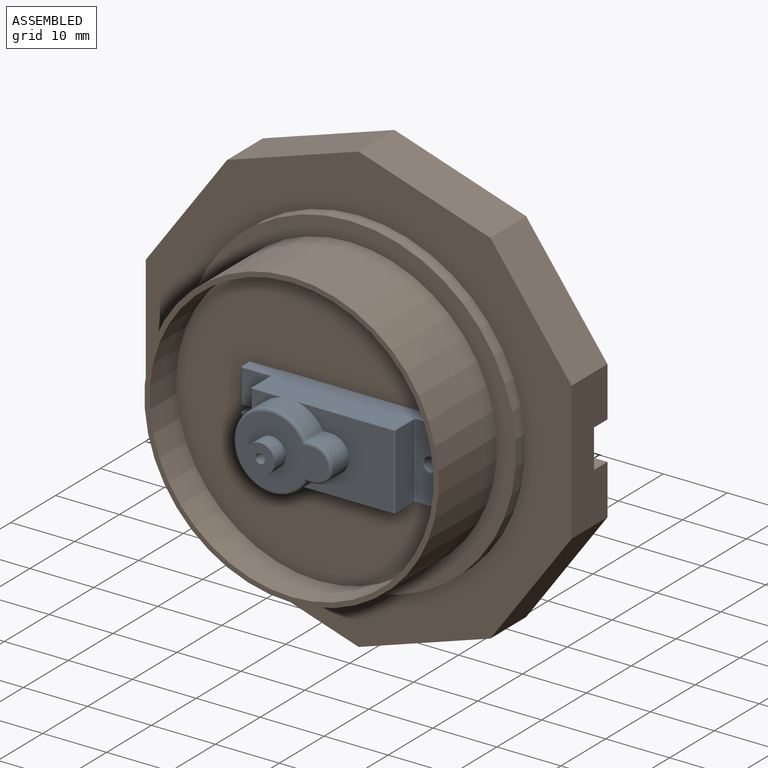
[diagram: assembled view]
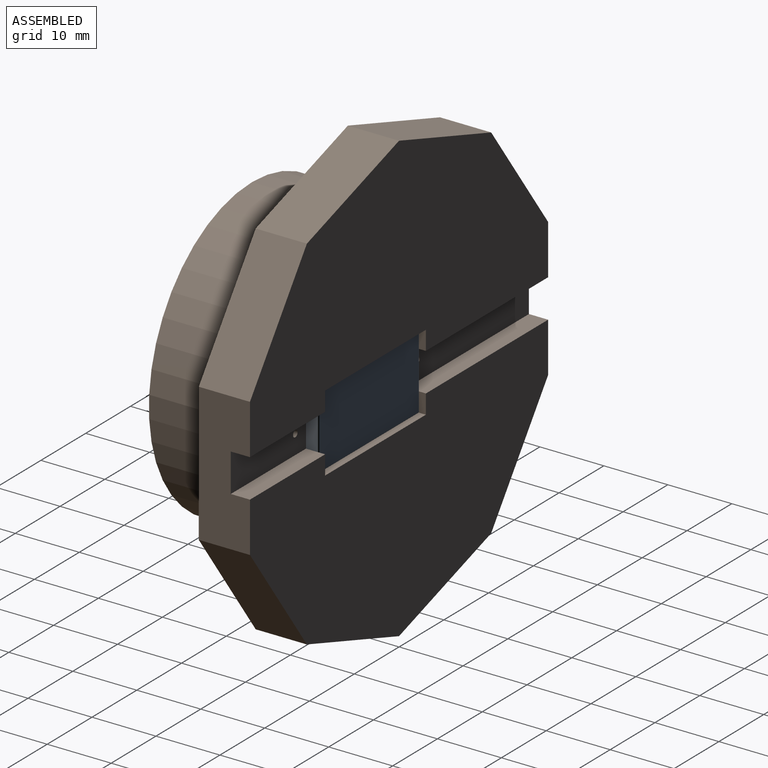
[diagram: assembled view, second angle]
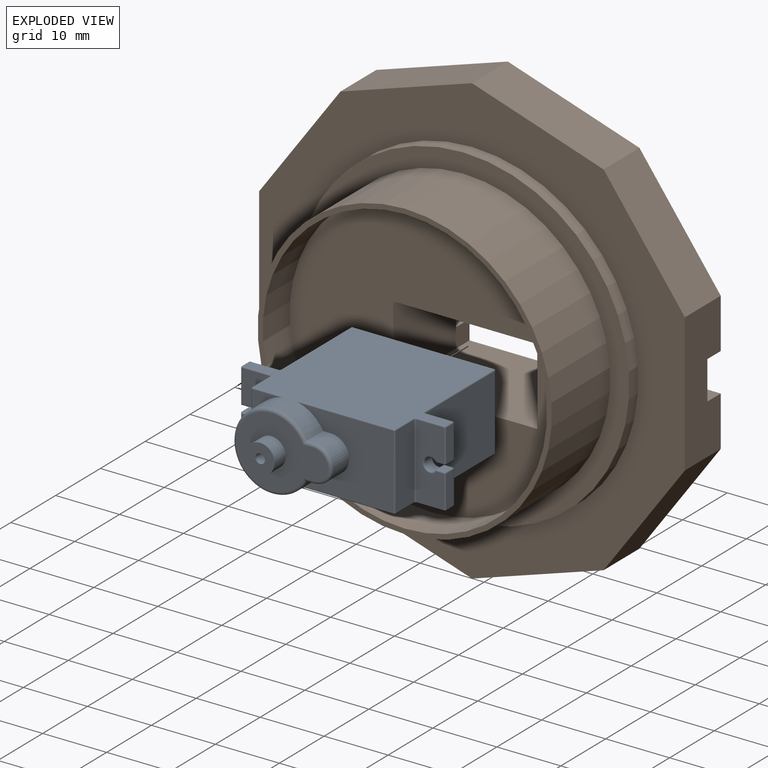
[diagram: exploded view]
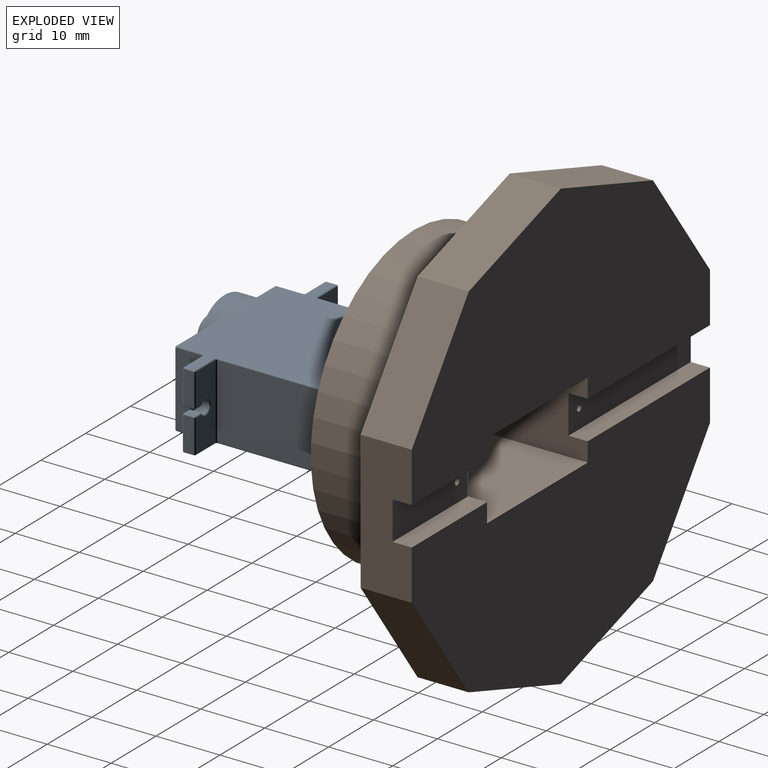
[diagram: exploded view, second angle]
ASSEMBLY  parts=2 mates=3
PART A: 128 faces, bbox 32.1x29.1x13.1 mm
  f0: torus R=5.5mm, axis (0,1,0), area 24.4mm2, adj f7,f10,f125,f127
  f1: torus R=1.2mm, axis (0,1,0), area 1.7mm2, adj f9,f26,f93,f94
  f2: torus R=1.2mm, axis (0,1,0), area 1.7mm2, adj f9,f25,f78,f79
  f3: torus R=1.2mm, axis (0,1,0), area 1.7mm2, adj f8,f32,f64,f74
  f4: torus R=1.2mm, axis (0,1,0), area 1.7mm2, adj f8,f31,f55,f57
  f5: cylinder r=0.75mm len=5mm, axis (0,1,0), area 23.6mm2, adj f36,f37
  f6: cylinder r=2.25mm len=4.5mm, axis (0,-1,0), area 35.3mm2, adj f10,f36
  f7: cylinder r=6mm len=12mm, axis (0,-1,0), area 111.2mm2, adj f0,f11,f12,f20,f33,f35,f38,f39
  f8: cylinder r=1mm len=2mm, axis (0,-1,0), area 8.4mm2, adj f3,f4,f28,f29
  f9: cylinder r=1mm len=2mm, axis (0,-1,0), area 8.4mm2, adj f1,f2,f22,f23
  f10: plane 14.35x11mm, normal (0,1,0), area 93.3mm2, adj f0,f6,f125,f126,f127
  f11: plane 14.76x11.6mm, normal (0,1,0), area 116mm2, adj f7,f33,f34,f35,f40,f41,f42
  f12: plane 4.26x4.26mm, normal (0,1,0), area 5.8mm2, adj f7,f50,f51
  f13: plane 15.6x11.6mm, normal (1,0,0), area 181mm2, adj f103,f108,f112,f113
  f14: plane 15.6x11.6mm, normal (-1,0,0), area 181mm2, adj f110,f119,f120,f124
  f15: plane 11.6x4.1mm, normal (1,0,0), area 47.6mm2, adj f42,f49,f54,f56
  f16: plane 31.75x22.45mm, normal (0,0,1), area 504mm2, adj f39,f41,f47,f53,f54,f62,f70,f71
  f17: plane 11.6x4.3mm, normal (-1,0,0), area 47.8mm2, adj f45,f46,f51,f52,f68,f69,f70
  f18: plane 31.75x22.45mm, normal (0,0,-1), area 504mm2, adj f38,f40,f44,f49,f50,f59,f67,f68
  f19: plane 22.1x11.6mm, normal (0,-1,0), area 256.4mm2, adj f113,f118,f121,f124
  f20: plane 4.26x4.26mm, normal (0,1,0), area 5.8mm2, adj f7,f52,f53
  f21: plane 5.3x1.6mm, normal (-1,0,0), area 8.5mm2, adj f22,f86,f98,f99
  f22: plane 1.6x1.51mm, normal (0,0,1), area 2.4mm2, adj f9,f21,f78,f93
  f23: plane 1.6x1.51mm, normal (0,0,-1), area 2.4mm2, adj f9,f24,f79,f94
  f24: plane 5.3x1.6mm, normal (-1,0,0), area 8.5mm2, adj f23,f87,f100,f101
  f25: plane 11.6x4.35mm, normal (0,1,0), area 44.5mm2, adj f2,f69,f78,f79,f85,f86,f87,f88
  f26: plane 11.6x4.35mm, normal (0,-1,0), area 44.5mm2, adj f1,f93,f94,f99,f100,f109,f110,f111
  f27: plane 5.1x1.6mm, normal (1,0,0), area 8.2mm2, adj f72,f73,f89,f90
  f28: plane 1.6x1.31mm, normal (0,0,-1), area 2.1mm2, adj f8,f57,f73,f74
  f29: plane 1.6x1.31mm, normal (0,0,1), area 2.1mm2, adj f8,f55,f64,f65
  f30: plane 5.1x1.6mm, normal (1,0,0), area 8.2mm2, adj f65,f66,f83,f84
  f31: plane 11.6x4.35mm, normal (0,1,0), area 44.5mm2, adj f4,f55,f56,f57,f66,f67,f71,f72
  f32: plane 11.6x4.35mm, normal (0,-1,0), area 44.5mm2, adj f3,f64,f74,f83,f90,f97,f102,f103
  f33: plane 3.5x1.22mm, normal (0,0,1), area 4.3mm2, adj f7,f11,f34,f127
  f34: cylinder r=2.85mm len=5.7mm, axis (0,-1,0), area 31.3mm2, adj f11,f33,f35,f126
  f35: plane 3.5x1.22mm, normal (0,0,-1), area 4.3mm2, adj f7,f11,f34,f125
  f36: plane 4.5x4.5mm, normal (0,1,0), area 14.1mm2, adj f5,f6
  f37: plane 1.5x1.5mm, normal (0,1,0), area 1.8mm2, adj f5
  f38: bspline ~1.54x0.2mm, area 0.2mm2, adj f7,f18,f40
  f39: bspline ~1.54x0.2mm, area 0.2mm2, adj f7,f16,f41
  f40: cylinder r=0.2mm len=14.76mm, axis (-1,0,0), area 4.6mm2, adj f11,f18,f38,f43
  f41: cylinder r=0.2mm len=14.76mm, axis (1,0,0), area 4.6mm2, adj f11,f16,f39,f48
  f42: cylinder r=0.2mm len=11.6mm, axis (0,0,-1), area 3.6mm2, adj f11,f15,f43,f48
  f43: sphere r=0.2mm, area 0mm2, adj f40,f42,f49
  f44: bspline ~1.54x0.2mm, area 0.2mm2, adj f7,f18,f50
  f45: bspline ~1.54x0.2mm, area 0.2mm2, adj f7,f17,f51
  f46: bspline ~1.54x0.2mm, area 0.2mm2, adj f7,f17,f52
  f47: bspline ~1.54x0.2mm, area 0.2mm2, adj f7,f16,f53
  f48: sphere r=0.2mm, area 0.1mm2, adj f41,f42,f54
  f49: cylinder r=0.2mm len=4.1mm, axis (0,1,0), area 1.3mm2, adj f15,f18,f43,f59
  f50: cylinder r=0.2mm len=4.26mm, axis (-1,0,0), area 1.3mm2, adj f12,f18,f44,f60
  f51: cylinder r=0.2mm len=4.26mm, axis (0,0,1), area 1.3mm2, adj f12,f17,f45,f60
  f52: cylinder r=0.2mm len=4.26mm, axis (0,0,1), area 1.3mm2, adj f17,f20,f46,f61
  f53: cylinder r=0.2mm len=4.26mm, axis (1,0,0), area 1.3mm2, adj f16,f20,f47,f61
  f54: cylinder r=0.2mm len=4.1mm, axis (0,1,0), area 1.3mm2, adj f15,f16,f48,f62
  f55: cylinder r=0.2mm len=1.31mm, axis (-1,0,0), area 0.4mm2, adj f4,f29,f31,f58
  f56: cylinder r=0.2mm len=11.6mm, axis (0,0,-1), area 3.6mm2, adj f15,f31,f59,f62
  f57: cylinder r=0.2mm len=1.31mm, axis (1,0,0), area 0.4mm2, adj f4,f28,f31,f63
  f58: sphere r=0.2mm, area 0mm2, adj f55,f65,f66
  f59: torus R=0.4mm, axis (0,0,-1), area 0.1mm2, adj f18,f49,f56,f67
  f60: sphere r=0.2mm, area 0.1mm2, adj f50,f51,f68
  f61: sphere r=0.2mm, area 0.1mm2, adj f52,f53,f70
  f62: torus R=0.4mm, axis (0,0,1), area 0.1mm2, adj f16,f54,f56,f71
  f63: sphere r=0.2mm, area 0mm2, adj f57,f72,f73
  f64: cylinder r=0.2mm len=1.31mm, axis (1,0,0), area 0.4mm2, adj f3,f29,f32,f75
  f65: cylinder r=0.2mm len=1.6mm, axis (0,-1,0), area 0.5mm2, adj f29,f30,f58,f75
  f66: cylinder r=0.2mm len=5.1mm, axis (0,0,1), area 1.6mm2, adj f30,f31,f58,f76
  f67: cylinder r=0.2mm len=4.35mm, axis (-1,0,0), area 1.4mm2, adj f18,f31,f59,f76
  f68: cylinder r=0.2mm len=4.1mm, axis (0,1,0), area 1.3mm2, adj f17,f18,f60,f77
  f69: cylinder r=0.2mm len=11.6mm, axis (0,0,1), area 3.6mm2, adj f17,f25,f77,f80
  f70: cylinder r=0.2mm len=4.1mm, axis (0,1,0), area 1.3mm2, adj f16,f17,f61,f80
  f71: cylinder r=0.2mm len=4.35mm, axis (1,0,0), area 1.4mm2, adj f16,f31,f62,f81
  f72: cylinder r=0.2mm len=5.1mm, axis (0,0,1), area 1.6mm2, adj f27,f31,f63,f81
  f73: cylinder r=0.2mm len=1.6mm, axis (0,-1,0), area 0.5mm2, adj f27,f28,f63,f82
  f74: cylinder r=0.2mm len=1.31mm, axis (-1,0,0), area 0.4mm2, adj f3,f28,f32,f82
  f75: sphere r=0.2mm, area 0.1mm2, adj f64,f65,f83
  f76: sphere r=0.2mm, area 0mm2, adj f66,f67,f84
  f77: torus R=0.4mm, axis (0,0,-1), area 0.1mm2, adj f18,f68,f69,f85
  f78: cylinder r=0.2mm len=1.51mm, axis (-1,0,0), area 0.4mm2, adj f2,f22,f25,f86
  f79: cylinder r=0.2mm len=1.51mm, axis (1,0,0), area 0.4mm2, adj f2,f23,f25,f87
  f80: torus R=0.4mm, axis (0,0,1), area 0.1mm2, adj f16,f69,f70,f88
  f81: sphere r=0.2mm, area 0.1mm2, adj f71,f72,f89
  f82: sphere r=0.2mm, area 0mm2, adj f73,f74,f90
  f83: cylinder r=0.2mm len=5.1mm, axis (0,0,-1), area 1.6mm2, adj f30,f32,f75,f91
  f84: cylinder r=0.2mm len=1.6mm, axis (0,1,0), area 0.5mm2, adj f18,f30,f76,f91
  f85: cylinder r=0.2mm len=4.35mm, axis (-1,0,0), area 1.4mm2, adj f18,f25,f77,f92
  f86: cylinder r=0.2mm len=5.3mm, axis (0,0,-1), area 1.6mm2, adj f21,f25,f78,f92
  f87: cylinder r=0.2mm len=5.3mm, axis (0,0,-1), area 1.6mm2, adj f24,f25,f79,f95
  f88: cylinder r=0.2mm len=4.35mm, axis (1,0,0), area 1.4mm2, adj f16,f25,f80,f95
  f89: cylinder r=0.2mm len=1.6mm, axis (0,1,0), area 0.5mm2, adj f16,f27,f81,f96
  f90: cylinder r=0.2mm len=5.1mm, axis (0,0,-1), area 1.6mm2, adj f27,f32,f82,f96
  f91: sphere r=0.2mm, area 0mm2, adj f83,f84,f97
  f92: sphere r=0.2mm, area 0.1mm2, adj f85,f86,f98
  f93: cylinder r=0.2mm len=1.51mm, axis (1,0,0), area 0.4mm2, adj f1,f22,f26,f99
  f94: cylinder r=0.2mm len=1.51mm, axis (-1,0,0), area 0.4mm2, adj f1,f23,f26,f100
  f95: sphere r=0.2mm, area 0.1mm2, adj f87,f88,f101
  f96: sphere r=0.2mm, area 0.1mm2, adj f89,f90,f102
  f97: cylinder r=0.2mm len=4.35mm, axis (1,0,0), area 1.4mm2, adj f18,f32,f91,f104
  f98: cylinder r=0.2mm len=1.6mm, axis (0,1,0), area 0.5mm2, adj f18,f21,f92,f105
  f99: cylinder r=0.2mm len=5.3mm, axis (0,0,1), area 1.6mm2, adj f21,f26,f93,f105
  f100: cylinder r=0.2mm len=5.3mm, axis (0,0,1), area 1.6mm2, adj f24,f26,f94,f106
  f101: cylinder r=0.2mm len=1.6mm, axis (0,1,0), area 0.5mm2, adj f16,f24,f95,f106
  f102: cylinder r=0.2mm len=4.35mm, axis (-1,0,0), area 1.4mm2, adj f16,f32,f96,f107
  f103: cylinder r=0.2mm len=11.6mm, axis (0,0,1), area 3.6mm2, adj f13,f32,f104,f107
  f104: torus R=0.4mm, axis (0,0,-1), area 0.1mm2, adj f18,f97,f103,f108
  f105: sphere r=0.2mm, area 0.1mm2, adj f98,f99,f109
  f106: sphere r=0.2mm, area 0.1mm2, adj f100,f101,f111
  f107: torus R=0.4mm, axis (0,0,1), area 0.1mm2, adj f16,f102,f103,f112
  f108: cylinder r=0.2mm len=15.6mm, axis (0,1,0), area 4.9mm2, adj f13,f18,f104,f114
  f109: cylinder r=0.2mm len=4.35mm, axis (1,0,0), area 1.4mm2, adj f18,f26,f105,f115
  f110: cylinder r=0.2mm len=11.6mm, axis (0,0,-1), area 3.6mm2, adj f14,f26,f115,f116
  f111: cylinder r=0.2mm len=4.35mm, axis (-1,0,0), area 1.4mm2, adj f16,f26,f106,f116
  f112: cylinder r=0.2mm len=15.6mm, axis (0,1,0), area 4.9mm2, adj f13,f16,f107,f117
  f113: cylinder r=0.2mm len=11.6mm, axis (0,0,1), area 3.6mm2, adj f13,f19,f114,f117
  f114: sphere r=0.2mm, area 0mm2, adj f108,f113,f118
  f115: torus R=0.4mm, axis (0,0,-1), area 0.1mm2, adj f18,f109,f110,f119
  f116: torus R=0.4mm, axis (0,0,1), area 0.1mm2, adj f16,f110,f111,f120
  f117: sphere r=0.2mm, area 0.1mm2, adj f112,f113,f121
  f118: cylinder r=0.2mm len=22.1mm, axis (1,0,0), area 6.9mm2, adj f18,f19,f114,f122
  f119: cylinder r=0.2mm len=15.6mm, axis (0,1,0), area 4.9mm2, adj f14,f18,f115,f122
  f120: cylinder r=0.2mm len=15.6mm, axis (0,1,0), area 4.9mm2, adj f14,f16,f116,f123
  f121: cylinder r=0.2mm len=22.1mm, axis (-1,0,0), area 6.9mm2, adj f16,f19,f117,f123
  f122: sphere r=0.2mm, area 0.1mm2, adj f118,f119,f124
  f123: sphere r=0.2mm, area 0.1mm2, adj f120,f121,f124
  f124: cylinder r=0.2mm len=11.6mm, axis (0,0,-1), area 3.6mm2, adj f14,f19,f122,f123
  f125: cylinder r=0.5mm len=1.53mm, axis (1,0,0), area 1.1mm2, adj f0,f10,f35,f126
  f126: torus R=2.35mm, axis (0,1,0), area 6.6mm2, adj f10,f34,f125,f127
  f127: cylinder r=0.5mm len=1.53mm, axis (-1,0,0), area 1.1mm2, adj f0,f10,f33,f126
PART B: 31 faces, bbox 66.6x23x70 mm
  f0: plane 66.57x32mm, normal (0,1,0), area 1532.9mm2, adj f1,f2,f3,f4,f8,f15,f16,f17
  f1: plane 17x12mm, normal (1,0,0), area 186mm2, adj f0,f5,f6,f8,f9,f26,f27,f28
  f2: plane 17x12mm, normal (-1,0,0), area 186mm2, adj f0,f5,f6,f8,f9,f23,f24,f25
  f3: plane 21.63x8mm, normal (-1,0,0), area 155mm2, adj f0,f6,f14,f15,f20,f26,f27,f28
  f4: plane 21.63x8mm, normal (1,0,0), area 155mm2, adj f0,f6,f18,f19,f20,f23,f24,f25
  f5: plane 44.44x44.44mm, normal (0,-1,0), area 1279.5mm2, adj f1,f2,f8,f9,f21,f29,f30
  f6: plane 66.57x32mm, normal (0,1,0), area 1532.9mm2, adj f1,f2,f3,f4,f9,f12,f13,f14
  f7: cylinder r=23mm len=46mm, axis (0,1,0), area 1878.7mm2, adj f11,f22
  f8: plane 22.5x17mm, normal (0,0,1), area 382.5mm2, adj f0,f1,f2,f5
  f9: plane 22.5x17mm, normal (0,0,-1), area 382.5mm2, adj f1,f2,f5,f6
  f10: cylinder r=26mm len=52mm, axis (0,1,0), area 326.7mm2, adj f11,f20
  f11: plane 52x52mm, normal (0,-1,0), area 461.8mm2, adj f7,f10
  f12: plane 20.57x8mm, normal (0.31,0,0.95), area 173mm2, adj f6,f13,f19,f20
  f13: plane 20.57x8mm, normal (-0.31,0,0.95), area 173mm2, adj f6,f12,f14,f20
  f14: plane 17.5x12.71mm, normal (-0.81,0,0.59), area 173mm2, adj f3,f6,f13,f20
  f15: plane 17.5x12.71mm, normal (-0.81,0,-0.59), area 173mm2, adj f0,f3,f16,f20
  f16: plane 20.57x8mm, normal (-0.31,0,-0.95), area 173mm2, adj f0,f15,f17,f20
  f17: plane 20.57x8mm, normal (0.31,0,-0.95), area 173mm2, adj f0,f16,f18,f20
  f18: plane 17.5x12.71mm, normal (0.81,0,-0.59), area 173mm2, adj f0,f4,f17,f20
  f19: plane 17.5x12.71mm, normal (0.81,0,0.59), area 173mm2, adj f4,f6,f12,f20
  f20: plane 70x66.57mm, normal (0,-1,0), area 1476.5mm2, adj f3,f4,f10,f12,f13,f14,f15,f16
  f21: cylinder r=22.22mm len=44.44mm, axis (0,1,0), area 837.7mm2, adj f5,f22
  f22: plane 46x46mm, normal (0,-1,0), area 110.8mm2, adj f7,f21
  f23: plane 16.79x6mm, normal (0,1,0), area 99.9mm2, adj f2,f4,f24,f25,f30
  f24: plane 16.79x3mm, normal (0,0,-1), area 50.4mm2, adj f2,f4,f6,f23
  f25: plane 16.79x3mm, normal (0,0,1), area 50.4mm2, adj f0,f2,f4,f23
  f26: plane 27.29x3mm, normal (0,0,1), area 81.9mm2, adj f0,f1,f3,f28
  f27: plane 27.29x3mm, normal (0,0,-1), area 81.9mm2, adj f1,f3,f6,f28
  f28: plane 27.29x6mm, normal (0,1,0), area 162.9mm2, adj f1,f3,f26,f27,f29
  f29: cylinder r=0.5mm len=14mm, axis (0,-1,0), area 44mm2, adj f5,f28
  f30: cylinder r=0.5mm len=14mm, axis (0,-1,0), area 44mm2, adj f5,f23
PLACE A rot(axis=(1,0,0),180deg) t=(5.25,-17,0)mm
PLACE B at identity fixed
MATE cylindrical A.f1 <-> B.f29  axis (0,1,0) through (-8.38,-18,0)mm
MATE parallel A.f16 <-> B.f8  axis (0,0,-1) through (5.25,-12.43,-6)mm
MATE planar A.f26 <-> B.f5  axis (0,1,0) through (-8.32,-17,0)mm
